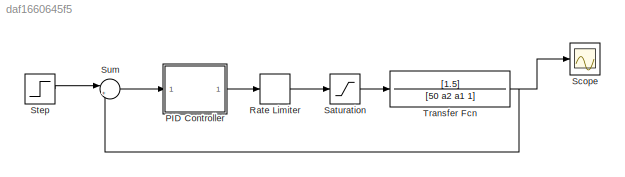
MODEL slx_daf1660645f5
KIND model
CONFIG AbsTol = auto
CONFIG FixedStep = auto
CONFIG MaxStep = auto
CONFIG MinStep = auto
CONFIG RelTol = 1e-3
CONFIG SampleTimeConstraint = Unconstrained
CONFIG Solver = VariableStepAuto
CONFIG SolverMode = Auto
CONFIG SolverName = VariableStepAuto
CONFIG StartTime = 0.0
CONFIG StopTime = 10.0
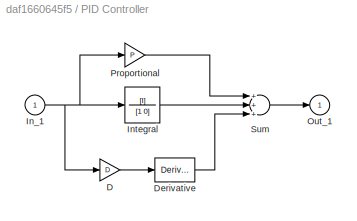
BLOCK [SubSystem] PID Controller
  Ports = [1, 1]
  RequestExecContextInheritance = off
  Variant = off
BLOCK [Gain] PID Controller/D
  Gain = D
BLOCK [Derivative] PID Controller/Derivative
BLOCK [Inport] PID Controller/In_1
  IconDisplay = Port number
BLOCK [TransferFcn] PID Controller/Integral
  Denominator = [1 0]
  Numerator = [I]
BLOCK [Outport] PID Controller/Out_1
  IconDisplay = Port number
  InitialOutput = 0
BLOCK [Gain] PID Controller/Proportional
  Gain = P
BLOCK [Sum] PID Controller/Sum
  Inputs = +++
  Ports = [3, 1]
BLOCK [RateLimiter] Rate Limiter
  FallingSlewLimit = -0.8
  RisingSlewLimit = 0.8
  SampleTimeMode = inherited
BLOCK [Saturate] Saturation
  InputPortMap = u0
  LowerLimit = -1
  Ports = [1, 1]
  UpperLimit = 1
BLOCK [Scope] Scope
  Ports = [1]
  ScopeSpecificationString = Simulink.scopes.TimeScopeBlockCfg('CurrentConfiguration', extmgr.ConfigurationSet(extmgr.Configuration('Core','General UI',true),extmgr.Configuration('Core','Source UI',true),extmgr.Configuration('Sources','WiredSimulink',true),extmgr.Configuration('Visuals','Time Domain',true),extmgr.Configuration('Tools','Plot Navigation',true),extmgr.Configuration('Tools','Measurements',true,'Version','2016a'))...<+19ch>
BLOCK [Step] Step
  SampleTime = 0
  Time = 0
BLOCK [Sum] Sum
  IconShape = round
  InputSameDT = off
  Inputs = |+-
  OutDataTypeStr = Inherit: Inherit via internal rule
  Ports = [2, 1]
  SaturateOnIntegerOverflow = off
BLOCK [TransferFcn] Transfer Fcn
  Denominator = [50 a2 a1 1]
  Numerator = [1.5]
LINE PID Controller/D:1 -> PID Controller/Derivative:1
LINE PID Controller/Derivative:1 -> PID Controller/Sum:3
NET PID Controller/In_1:1 -> PID Controller/D:1, PID Controller/Integral:1, PID Controller/Proportional:1
LINE PID Controller/Integral:1 -> PID Controller/Sum:2
LINE PID Controller/Proportional:1 -> PID Controller/Sum:1
LINE PID Controller/Sum:1 -> PID Controller/Out_1:1
LINE PID Controller:1 -> Rate Limiter:1
LINE Rate Limiter:1 -> Saturation:1
LINE Saturation:1 -> Transfer Fcn:1
LINE Step:1 -> Sum:1
LINE Sum:1 -> PID Controller:1
NET Transfer Fcn:1 -> Scope:1, Sum:2
note: NET lines group one-source signal fan-out (src -> all destinations, sorted); 1:1 wires keep LINE
